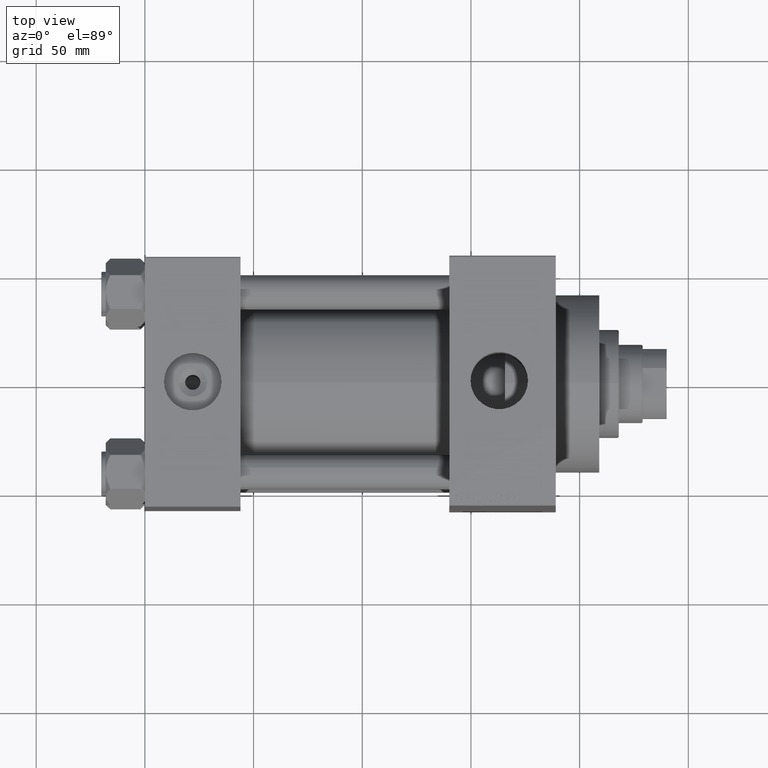
[diagram: clean part render]
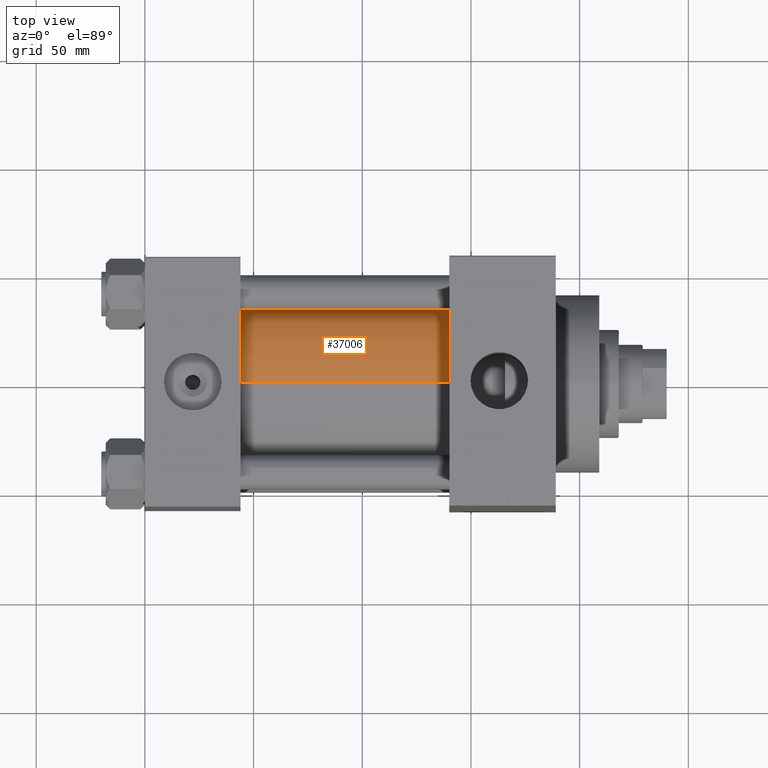
[diagram: same view with one face highlighted and labeled with its STEP entity id]
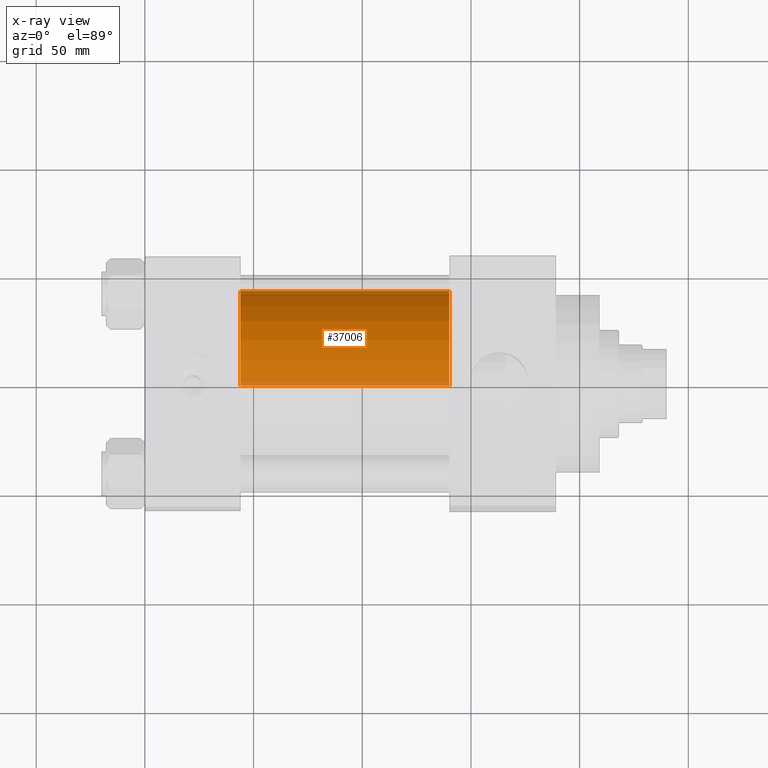
[diagram: x-ray of the same camera — body ghosted, the highlighted face saturated]
A machine part, top view. The second image highlights one B-rep face of the part: STEP entity #37006.
The next image is the same camera in x-ray: the body ghosted, the highlighted face saturated — about 7% of this face is hidden behind the body in this view.
In plain terms, the highlighted cylindrical surface (partial cylindrical patch) has radius 43 mm, axis along (-1, -0, -0).
Its self-contained STEP definition (entity closure, byte-faithful):
#359 = CARTESIAN_POINT ( 'NONE',  ( 44.00000000000000000, 2.663896022368408223E-15, -43.00000000000000000 ) ) ;
#367 = VERTEX_POINT ( 'NONE', #15809 ) ;
#4958 = LINE ( 'NONE', #45675, #34745 ) ;
#5670 = AXIS2_PLACEMENT_3D ( 'NONE', #27493, #34514, #42207 ) ;
#7152 = VECTOR ( 'NONE', #27373, 1000.000000000000000 ) ;
#7386 = FACE_OUTER_BOUND ( 'NONE', #23754, .T. ) ;
#7617 = DIRECTION ( 'NONE',  ( -1.000000000000000000, -0.000000000000000000, -0.000000000000000000 ) ) ;
#9454 = ORIENTED_EDGE ( 'NONE', *, *, #18371, .F. ) ;
#10588 = AXIS2_PLACEMENT_3D ( 'NONE', #34525, #20054, #41988 ) ;
#11717 = CARTESIAN_POINT ( 'NONE',  ( 140.0000000000000000, -2.602085213965210642E-15, 0.000000000000000000 ) ) ;
#15792 = ORIENTED_EDGE ( 'NONE', *, *, #16391, .T. ) ;
#15809 = CARTESIAN_POINT ( 'NONE',  ( 140.0000000000000000, 2.663896022368408223E-15, -43.00000000000000000 ) ) ;
#16391 = EDGE_CURVE ( 'NONE', #43341, #18366, #24127, .T. ) ;
#17029 = CARTESIAN_POINT ( 'NONE',  ( 140.0000000000000000, -2.602085213965210642E-15, 43.00000000000000000 ) ) ;
#18366 = VERTEX_POINT ( 'NONE', #38947 ) ;
#18371 = EDGE_CURVE ( 'NONE', #22805, #18366, #20864, .T. ) ;
#19426 = ORIENTED_EDGE ( 'NONE', *, *, #35237, .F. ) ;
#20054 = DIRECTION ( 'NONE',  ( 1.000000000000000000, 0.000000000000000000, 0.000000000000000000 ) ) ;
#20864 = LINE ( 'NONE', #17029, #7152 ) ;
#22805 = VERTEX_POINT ( 'NONE', #39685 ) ;
#23754 = EDGE_LOOP ( 'NONE', ( #19426, #42222, #15792, #9454 ) ) ;
#24127 = CIRCLE ( 'NONE', #5670, 43.00000000000000000 ) ;
#25683 = DIRECTION ( 'NONE',  ( 0.000000000000000000, 0.000000000000000000, 1.000000000000000000 ) ) ;
#27373 = DIRECTION ( 'NONE',  ( -1.000000000000000000, -0.000000000000000000, -0.000000000000000000 ) ) ;
#27493 = CARTESIAN_POINT ( 'NONE',  ( 44.00000000000000000, -2.602085213965210642E-15, 0.000000000000000000 ) ) ;
#34373 = DIRECTION ( 'NONE',  ( -1.000000000000000000, -0.000000000000000000, -0.000000000000000000 ) ) ;
#34514 = DIRECTION ( 'NONE',  ( 1.000000000000000000, -0.000000000000000000, 0.000000000000000000 ) ) ;
#34525 = CARTESIAN_POINT ( 'NONE',  ( 140.0000000000000000, -2.602085213965210642E-15, 0.000000000000000000 ) ) ;
#34745 = VECTOR ( 'NONE', #34373, 1000.000000000000000 ) ;
#35237 = EDGE_CURVE ( 'NONE', #367, #22805, #42913, .T. ) ;
#36792 = CYLINDRICAL_SURFACE ( 'NONE', #42193, 43.00000000000000000 ) ;
#37006 = ADVANCED_FACE ( 'NONE', ( #7386 ), #36792, .T. ) ;
#38947 = CARTESIAN_POINT ( 'NONE',  ( 44.00000000000000000, -2.602085213965210642E-15, 43.00000000000000000 ) ) ;
#39685 = CARTESIAN_POINT ( 'NONE',  ( 140.0000000000000000, -2.602085213965210642E-15, 43.00000000000000000 ) ) ;
#41988 = DIRECTION ( 'NONE',  ( 0.000000000000000000, 0.000000000000000000, -1.000000000000000000 ) ) ;
#42193 = AXIS2_PLACEMENT_3D ( 'NONE', #11717, #7617, #25683 ) ;
#42207 = DIRECTION ( 'NONE',  ( 0.000000000000000000, 0.000000000000000000, 1.000000000000000000 ) ) ;
#42222 = ORIENTED_EDGE ( 'NONE', *, *, #43566, .T. ) ;
#42913 = CIRCLE ( 'NONE', #10588, 43.00000000000000000 ) ;
#43341 = VERTEX_POINT ( 'NONE', #359 ) ;
#43566 = EDGE_CURVE ( 'NONE', #367, #43341, #4958, .T. ) ;
#45675 = CARTESIAN_POINT ( 'NONE',  ( 140.0000000000000000, 2.663896022368408223E-15, -43.00000000000000000 ) ) ;